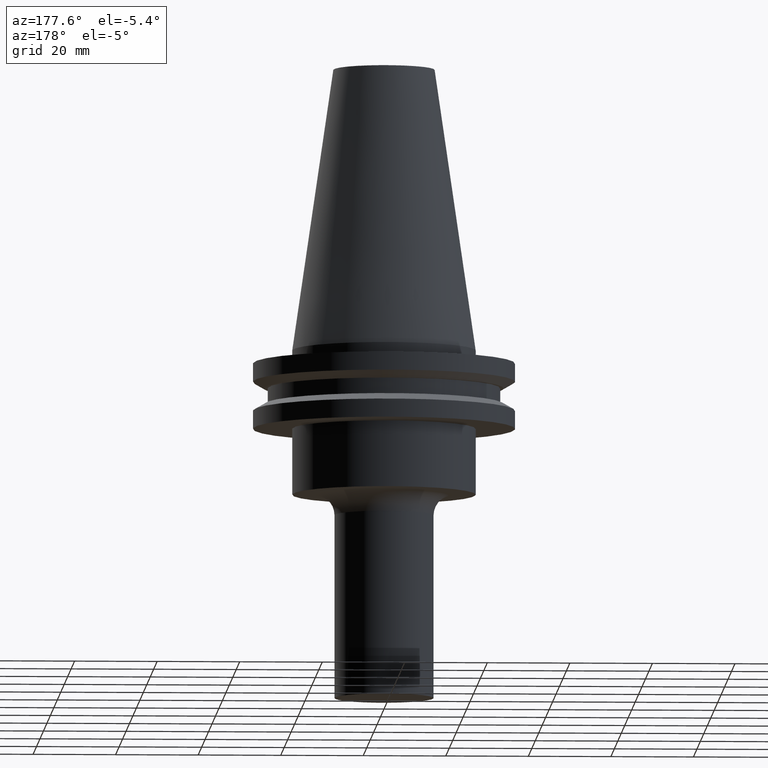
[diagram: clean part render]
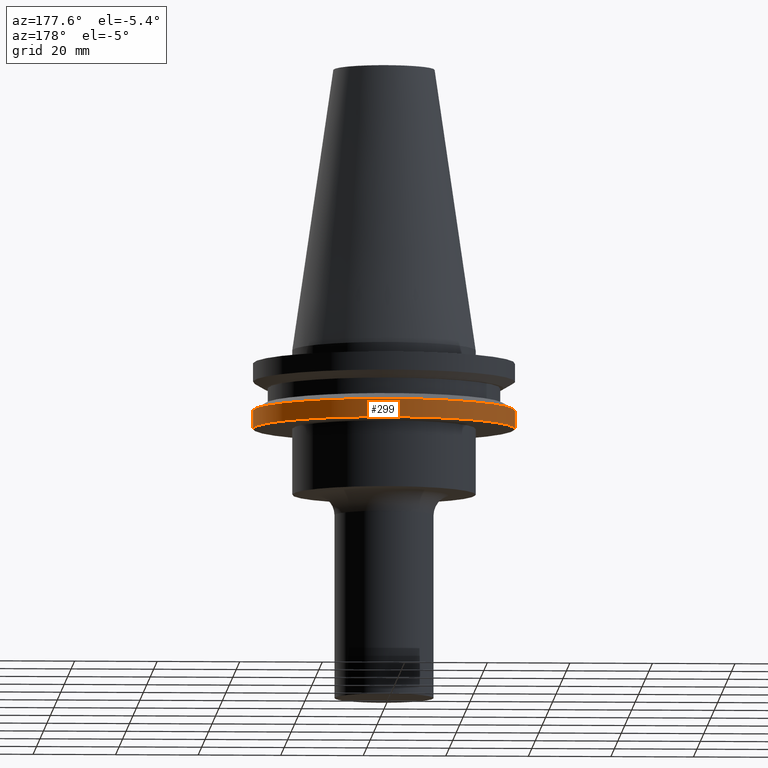
[diagram: same view with one face highlighted and labeled with its STEP entity id]
A machine part, auxiliary view. The second image highlights one B-rep face of the part: STEP entity #299.
In plain terms, the highlighted cylindrical surface (partial cylindrical patch) has radius 31.75 mm, axis along (-0, -0, 1).
Its self-contained STEP definition (entity closure, byte-faithful):
#25 = DIRECTION ( 'NONE',  ( -0.000000000000000000, -0.000000000000000000, 1.000000000000000000 ) ) ;
#44 = DIRECTION ( 'NONE',  ( -0.000000000000000000, -0.000000000000000000, 1.000000000000000000 ) ) ;
#52 = AXIS2_PLACEMENT_3D ( 'NONE', #162, #103, #278 ) ;
#86 = CYLINDRICAL_SURFACE ( 'NONE', #537, 31.75000000000000000 ) ;
#94 = LINE ( 'NONE', #205, #302 ) ;
#103 = DIRECTION ( 'NONE',  ( -0.000000000000000000, -0.000000000000000000, 1.000000000000000000 ) ) ;
#121 = ORIENTED_EDGE ( 'NONE', *, *, #365, .F. ) ;
#132 = EDGE_LOOP ( 'NONE', ( #316, #687, #657, #121 ) ) ;
#137 = VERTEX_POINT ( 'NONE', #694 ) ;
#140 = DIRECTION ( 'NONE',  ( 1.000000000000000000, 0.000000000000000000, 0.000000000000000000 ) ) ;
#142 = VERTEX_POINT ( 'NONE', #559 ) ;
#154 = EDGE_CURVE ( 'NONE', #696, #137, #272, .T. ) ;
#155 = CARTESIAN_POINT ( 'NONE',  ( 0.000000000000000000, 0.000000000000000000, -14.65472339340266572 ) ) ;
#162 = CARTESIAN_POINT ( 'NONE',  ( 0.000000000000000000, 0.000000000000000000, -19.04999999999999716 ) ) ;
#166 = EDGE_CURVE ( 'NONE', #142, #137, #636, .T. ) ;
#180 = EDGE_CURVE ( 'NONE', #341, #142, #637, .T. ) ;
#205 = CARTESIAN_POINT ( 'NONE',  ( 31.75000000000000000, 0.000000000000000000, 68.25000000000000000 ) ) ;
#229 = CARTESIAN_POINT ( 'NONE',  ( 31.75000000000000000, 0.000000000000000000, -14.65472339340266572 ) ) ;
#272 = CIRCLE ( 'NONE', #301, 31.75000000000000000 ) ;
#278 = DIRECTION ( 'NONE',  ( 1.000000000000000000, 0.000000000000000000, 0.000000000000000000 ) ) ;
#299 = ADVANCED_FACE ( 'NONE', ( #387 ), #86, .T. ) ;
#301 = AXIS2_PLACEMENT_3D ( 'NONE', #155, #396, #140 ) ;
#302 = VECTOR ( 'NONE', #25, 1000.000000000000000 ) ;
#316 = ORIENTED_EDGE ( 'NONE', *, *, #180, .T. ) ;
#341 = VERTEX_POINT ( 'NONE', #688 ) ;
#365 = EDGE_CURVE ( 'NONE', #341, #696, #94, .T. ) ;
#387 = FACE_OUTER_BOUND ( 'NONE', #132, .T. ) ;
#396 = DIRECTION ( 'NONE',  ( -0.000000000000000000, -0.000000000000000000, 1.000000000000000000 ) ) ;
#494 = DIRECTION ( 'NONE',  ( 1.000000000000000000, 0.000000000000000000, 0.000000000000000000 ) ) ;
#505 = CARTESIAN_POINT ( 'NONE',  ( 0.000000000000000000, 0.000000000000000000, 68.25000000000000000 ) ) ;
#537 = AXIS2_PLACEMENT_3D ( 'NONE', #505, #545, #494 ) ;
#545 = DIRECTION ( 'NONE',  ( -0.000000000000000000, -0.000000000000000000, 1.000000000000000000 ) ) ;
#559 = CARTESIAN_POINT ( 'NONE',  ( -31.74999999999999289, 3.888253587292845687E-15, -19.04999999999999716 ) ) ;
#579 = CARTESIAN_POINT ( 'NONE',  ( -31.75000000000000000, 3.888253587292846476E-15, 68.25000000000000000 ) ) ;
#587 = VECTOR ( 'NONE', #44, 1000.000000000000000 ) ;
#636 = LINE ( 'NONE', #579, #587 ) ;
#637 = CIRCLE ( 'NONE', #52, 31.74999999999999289 ) ;
#657 = ORIENTED_EDGE ( 'NONE', *, *, #154, .F. ) ;
#687 = ORIENTED_EDGE ( 'NONE', *, *, #166, .T. ) ;
#688 = CARTESIAN_POINT ( 'NONE',  ( 31.74999999999999289, 0.000000000000000000, -19.04999999999999716 ) ) ;
#694 = CARTESIAN_POINT ( 'NONE',  ( -31.75000000000000000, 3.888253587292846476E-15, -14.65472339340266572 ) ) ;
#696 = VERTEX_POINT ( 'NONE', #229 ) ;